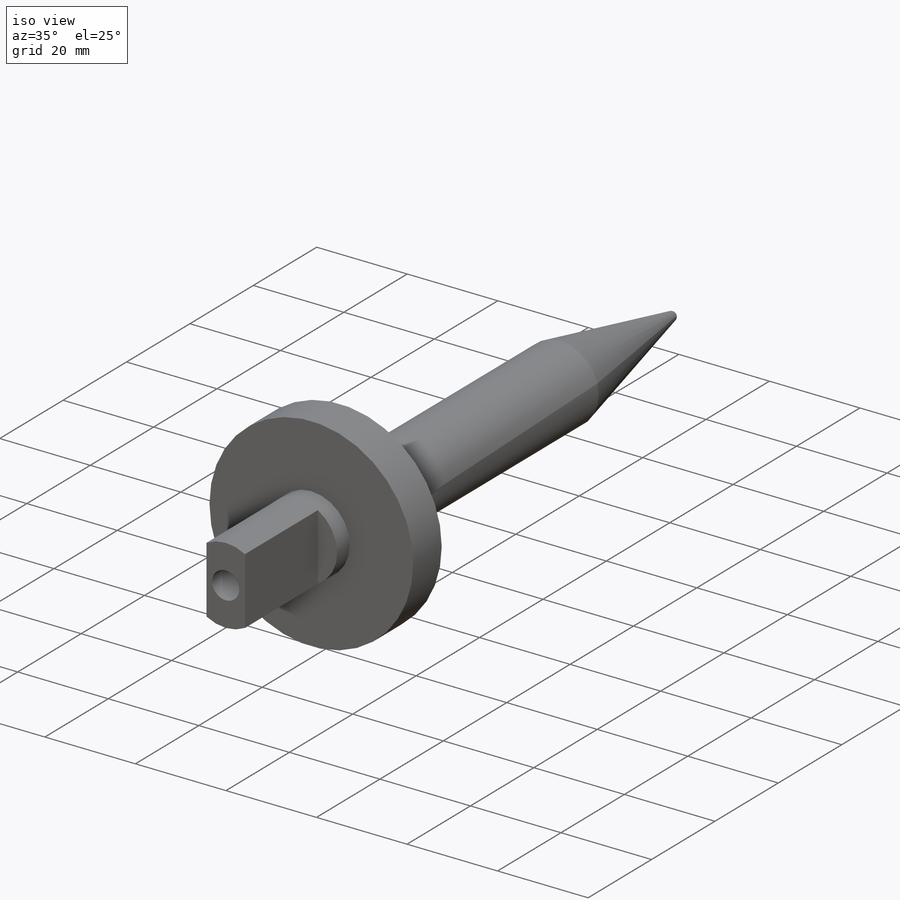
[diagram: iso view]
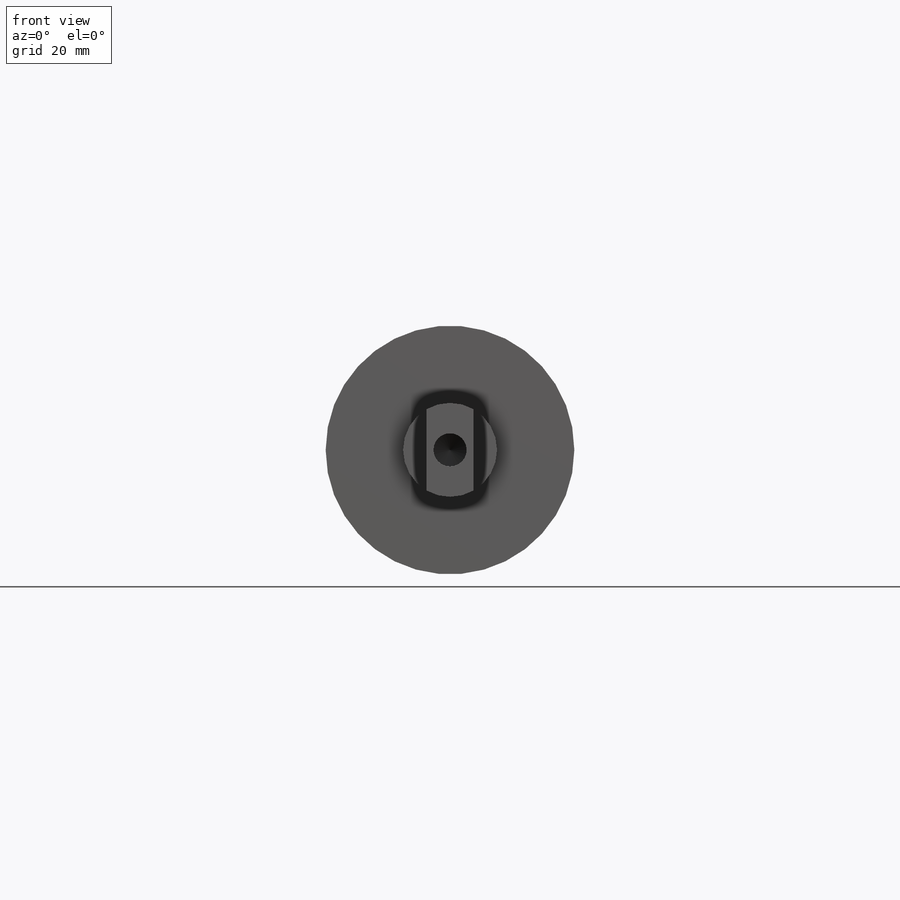
[diagram: front view]
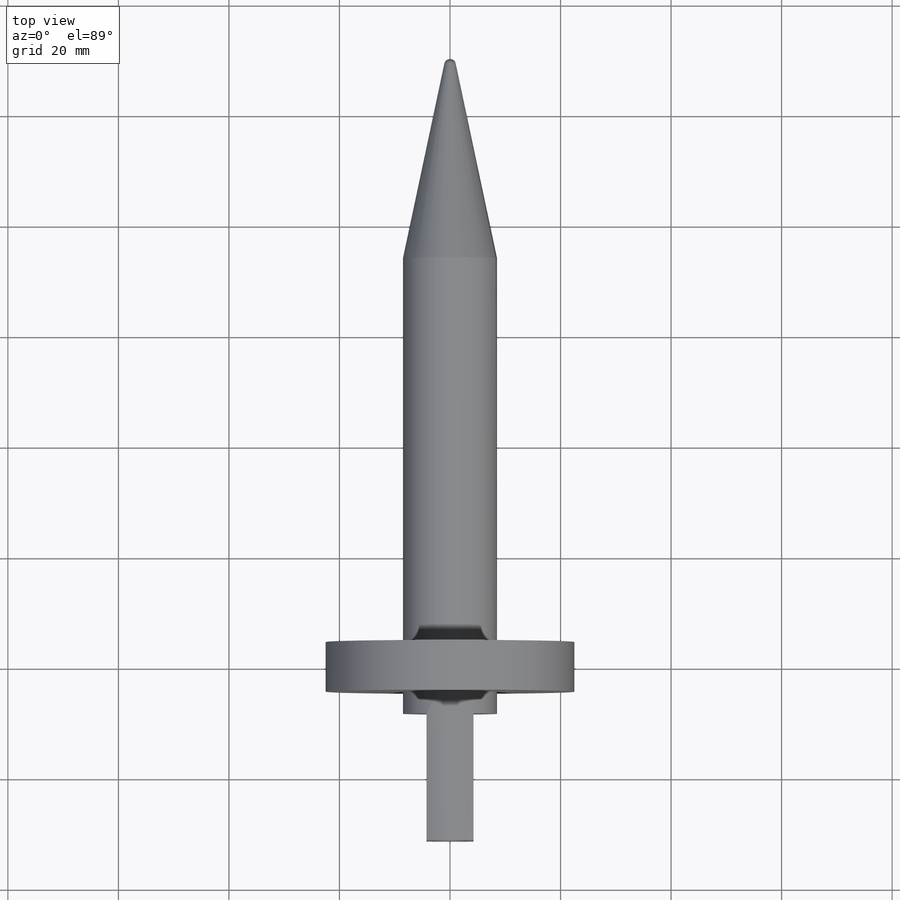
[diagram: top view]
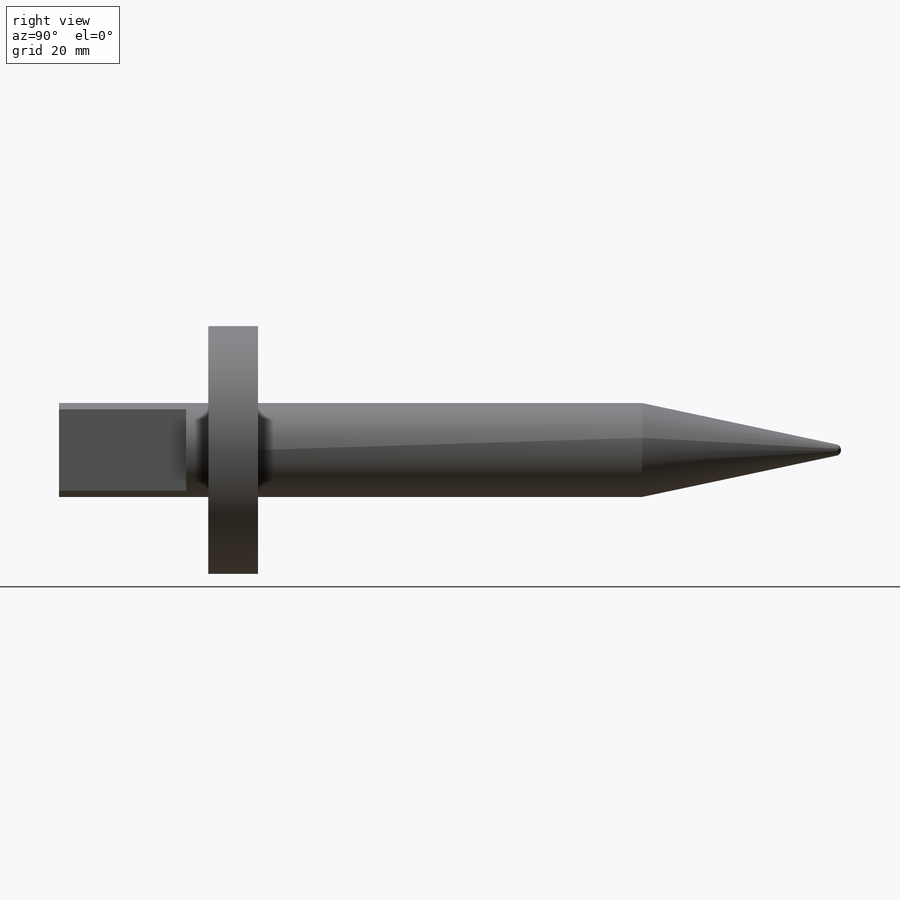
[diagram: right view]
SOLIDWORKS PART (.sldprt)
format: sldprt  version: not decoded by parser v0  size: 265,728 bytes
history: native  units: mm
features: sketch x7, extrude x4, thread x2, material x1, cut_revolve x1, fillet x1, hole x1 (+12 scaffold rows collapsed; 1 parser-record rows omitted)
feature tree (30):
  scaffold x12  (default folders/planes/origin — collapsed)
  material  "AISI 1020"
  sketch  "Sketch1"  dims[c1.D1=17.0mm c1.D2=30.0mm c1.D4=17.0mm c2.D2=45.0mm c2.D3=~36.64184mm c3.D3=70.0deg c3.D4=73.0mm c3.D5=40.0mm c3.D6=35.0mm c4.D5=40.0mm c4.D3=40.0mm c5.D5=35.0mm c5.D3=35.0mm]
  extrude  "Base Extrude"  [1 undecoded]
  thread  "Cosmetic Thread1"  Diameter=29.510644mm  [1 undecoded]
  extrude  "Front Cap"  [1 undecoded]
  sketch  "Sketch1<4>"  dims[D1=9.0mm]
  sketch  "Sketch3"  dims[c1.D1=~40.589284mm c2.D1=12.0deg c2.D2=50.0mm c2.D3=25.0mm c3.D2=1.0mm c3.D4=50.0mm c4.D2=4.0mm]
  cut_revolve  "End Bevel"  Angle=360deg
  fillet  "End Bevel Fillet"  Radius=1mm
  parser-record x1  (decoder bookkeeping rows leaked as tree rows — omitted from the tree; the rows remain in map.json)
  sketch  "Sketch7"
  extrude  "Front Knob"  Depth=4mm
  sketch  "Sketch6"  dims[D1=0.0mm]
  extrude  "Front Knob Slot"  Depth=23mm
  hole  "M7x1.0 Tapped Hole1"  Diameter=6mm Depth=19mm
  sketch  "Sketch9"
  sketch  "Sketch8"  dims[hole-wizard template sketch: 46 standard entries collapsed; hole parameters kept: c15.Tap Drill Dia.=6.0mm c15.Tap Drill Depth=19.0mm c15.D3=~14.816244mm c15.Drill Angle=118.0deg]
  thread  "Hole Thread1"  Diameter=14mm  [1 undecoded]
decode coverage: 12 of 16 modeling features carry decoded parameters
note: ~ marks probable driven/reference dimensions
note: 4 parameter values undecoded
note: suppression state not decoded; provenance and decode notes live in map.json
